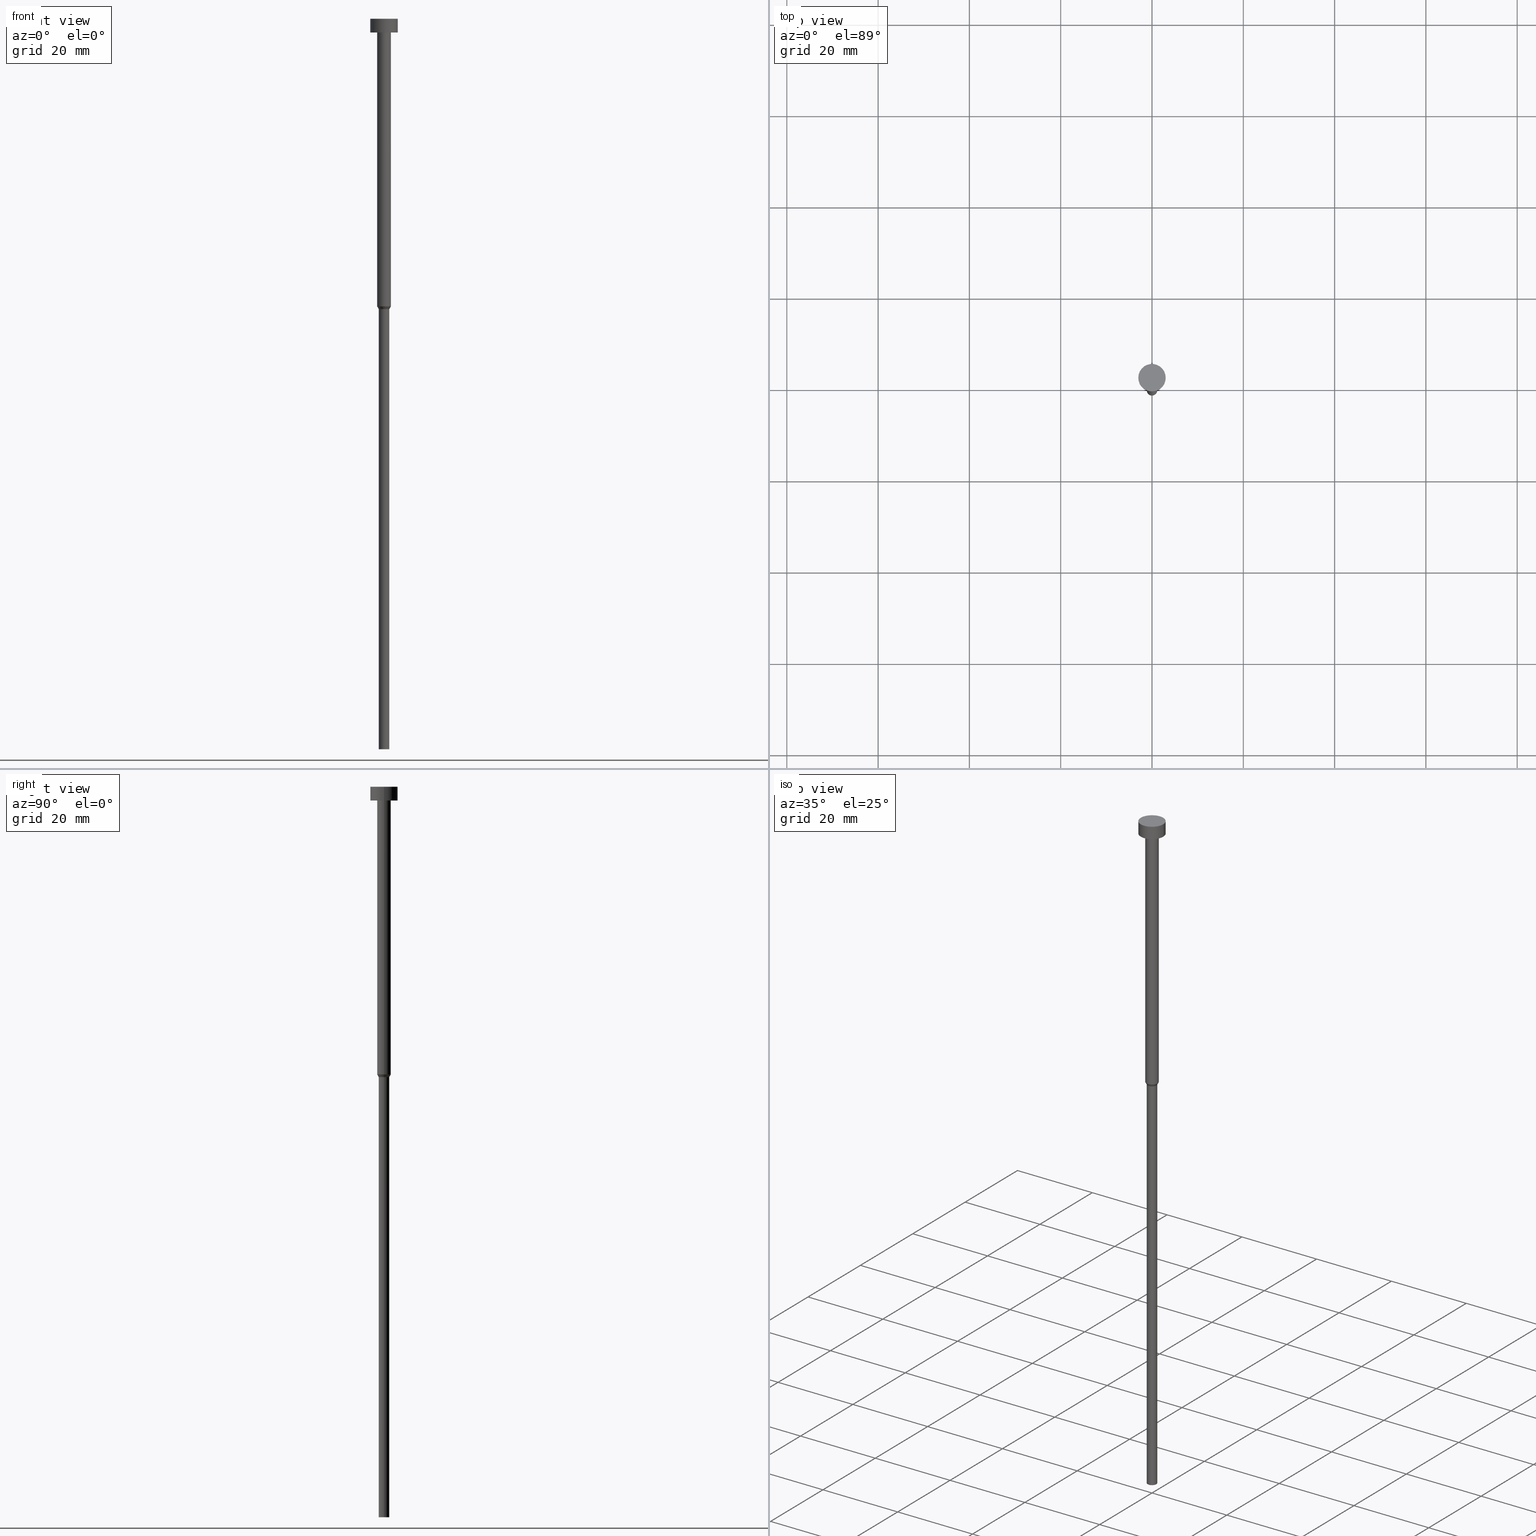
[diagram: canonical four-view strip — front | top / right | iso, engineering-drawing reading convention]
A machine part, canonical four-view strip (front | top / right | iso — engineering-drawing reading convention). The complete STEP part file that produces these views, byte-faithful:
ISO-10303-21;
HEADER;
FILE_DESCRIPTION (( 'STEP AP203' ),
    '1' );
FILE_NAME ('da65.STEP',
    '2023-02-13T10:00:46',
    ( '' ),
    ( '' ),
    'SwSTEP 2.0',
    'SolidWorks 2019',
    '' );
FILE_SCHEMA (( 'CONFIG_CONTROL_DESIGN' ));
ENDSEC;

DATA;
#1 = CARTESIAN_POINT ( 'NONE',  ( 3.000000000000000000, 0.000000000000000000, -3.000000000000000888 ) ) ;
#2 = ORIENTED_EDGE ( 'NONE', *, *, #150, .F. ) ;
#3 = APPROVAL_PERSON_ORGANIZATION ( #348, #340, #324 ) ;
#4 = CARTESIAN_POINT ( 'NONE',  ( 1.500000000000000000, 0.000000000000000000, -63.00000000000000000 ) ) ;
#5 = CYLINDRICAL_SURFACE ( 'NONE', #212, 1.500000000000000000 ) ;
#6 = CC_DESIGN_PERSON_AND_ORGANIZATION_ASSIGNMENT ( #186, #197, ( #154 ) ) ;
#7 = DIRECTION ( 'NONE',  ( -0.000000000000000000, -0.000000000000000000, 1.000000000000000000 ) ) ;
#8 = DIRECTION ( 'NONE',  ( 1.000000000000000000, 0.000000000000000000, 0.000000000000000000 ) ) ;
#9 = AXIS2_PLACEMENT_3D ( 'NONE', #25, #326, #198 ) ;
#10 = AXIS2_PLACEMENT_3D ( 'NONE', #241, #210, #338 ) ;
#11 = ADVANCED_FACE ( 'NONE', ( #229, #141 ), #352, .T. ) ;
#12 = DIRECTION ( 'NONE',  ( -0.000000000000000000, -0.000000000000000000, 1.000000000000000000 ) ) ;
#13 = CARTESIAN_POINT ( 'NONE',  ( 1.149999999999999911, 0.000000000000000000, -63.60621778264910375 ) ) ;
#14 = ORIENTED_EDGE ( 'NONE', *, *, #20, .F. ) ;
#15 = CYLINDRICAL_SURFACE ( 'NONE', #239, 3.000000000000000000 ) ;
#16 = VECTOR ( 'NONE', #250, 1000.000000000000000 ) ;
#17 = ORIENTED_EDGE ( 'NONE', *, *, #224, .T. ) ;
#18 = CC_DESIGN_APPROVAL ( #188, ( #169 ) ) ;
#19 = APPLICATION_PROTOCOL_DEFINITION ( 'international standard', 'config_control_design', 1994, #142 ) ;
#20 = EDGE_CURVE ( 'NONE', #201, #116, #301, .T. ) ;
#21 = FACE_OUTER_BOUND ( 'NONE', #118, .T. ) ;
#22 = DIRECTION ( 'NONE',  ( 0.000000000000000000, 0.000000000000000000, 1.000000000000000000 ) ) ;
#23 = VECTOR ( 'NONE', #336, 1000.000000000000000 ) ;
#24 = EDGE_CURVE ( 'NONE', #319, #193, #273, .T. ) ;
#25 = CARTESIAN_POINT ( 'NONE',  ( 0.000000000000000000, 0.000000000000000000, -160.0000000000000000 ) ) ;
#26 = LINE ( 'NONE', #117, #102 ) ;
#27 = ORIENTED_EDGE ( 'NONE', *, *, #93, .T. ) ;
#28 = AXIS2_PLACEMENT_3D ( 'NONE', #97, #207, #41 ) ;
#29 = CARTESIAN_POINT ( 'NONE',  ( 0.000000000000000000, -3.000000000000000000, -3.000000000000000888 ) ) ;
#30 = EDGE_LOOP ( 'NONE', ( #17, #351 ) ) ;
#31 = DIRECTION ( 'NONE',  ( 1.000000000000000000, 0.000000000000000000, 0.000000000000000000 ) ) ;
#32 = EDGE_CURVE ( 'NONE', #319, #272, #56, .T. ) ;
#33 = ORGANIZATION ( 'NEUR�EN�', 'NEUR�EN�', '' ) ;
#34 = CARTESIAN_POINT ( 'NONE',  ( 0.000000000000000000, 0.000000000000000000, -3.000000000000000888 ) ) ;
#35 = CARTESIAN_POINT ( 'NONE',  ( 0.000000000000000000, 0.000000000000000000, -63.00000000000000000 ) ) ;
#36 = DIRECTION ( 'NONE',  ( -0.000000000000000000, -0.000000000000000000, 1.000000000000000000 ) ) ;
#37 = EDGE_CURVE ( 'NONE', #161, #349, #164, .T. ) ;
#38 = CARTESIAN_POINT ( 'NONE',  ( 0.000000000000000000, 0.000000000000000000, 0.000000000000000000 ) ) ;
#39 = DIRECTION ( 'NONE',  ( 1.000000000000000000, 0.000000000000000000, 0.000000000000000000 ) ) ;
#40 = ORIENTED_EDGE ( 'NONE', *, *, #58, .T. ) ;
#41 = DIRECTION ( 'NONE',  ( 1.000000000000000000, 0.000000000000000000, 0.000000000000000000 ) ) ;
#42 = PERSON_AND_ORGANIZATION_ROLE ( 'classification_officer' ) ;
#43 = CARTESIAN_POINT ( 'NONE',  ( 0.000000000000000000, 0.000000000000000000, -63.00000000000000000 ) ) ;
#44 = AXIS2_PLACEMENT_3D ( 'NONE', #29, #332, #199 ) ;
#45 = VERTEX_POINT ( 'NONE', #1 ) ;
#46 = AXIS2_PLACEMENT_3D ( 'NONE', #103, #286, #288 ) ;
#47 = APPROVAL_STATUS ( 'not_yet_approved' ) ;
#48 = MECHANICAL_CONTEXT ( 'NONE', #142, 'mechanical' ) ;
#49 = APPROVAL_DATE_TIME ( #194, #80 ) ;
#50 = SECURITY_CLASSIFICATION_LEVEL ( 'unclassified' ) ;
#51 = EDGE_LOOP ( 'NONE', ( #183, #303, #136, #263 ) ) ;
#52 = PERSON_AND_ORGANIZATION ( #151, #33 ) ;
#53 = CIRCLE ( 'NONE', #174, 3.000000000000000000 ) ;
#54 = PRODUCT_DEFINITION_SHAPE ( 'NONE', 'NONE',  #163 ) ;
#55 = APPROVAL_PERSON_ORGANIZATION ( #52, #188, #341 ) ;
#56 = LINE ( 'NONE', #302, #60 ) ;
#57 = ORIENTED_EDGE ( 'NONE', *, *, #344, .F. ) ;
#58 = EDGE_CURVE ( 'NONE', #45, #225, #26, .T. ) ;
#59 = DIRECTION ( 'NONE',  ( -0.000000000000000000, -0.000000000000000000, 1.000000000000000000 ) ) ;
#60 = VECTOR ( 'NONE', #59, 1000.000000000000000 ) ;
#61 = CIRCLE ( 'NONE', #96, 3.000000000000000000 ) ;
#62 = VERTEX_POINT ( 'NONE', #140 ) ;
#63 = CARTESIAN_POINT ( 'NONE',  ( 0.000000000000000000, 0.000000000000000000, -3.000000000000000888 ) ) ;
#64 = EDGE_CURVE ( 'NONE', #90, #116, #179, .T. ) ;
#65 = FACE_OUTER_BOUND ( 'NONE', #227, .T. ) ;
#66 = AXIS2_PLACEMENT_3D ( 'NONE', #171, #242, #178 ) ;
#67 = FACE_OUTER_BOUND ( 'NONE', #331, .T. ) ;
#68 = DIRECTION ( 'NONE',  ( -0.000000000000000000, -0.000000000000000000, 1.000000000000000000 ) ) ;
#69 = ADVANCED_FACE ( 'NONE', ( #237 ), #120, .T. ) ;
#70 = DIRECTION ( 'NONE',  ( 1.000000000000000000, 0.000000000000000000, 0.000000000000000000 ) ) ;
#71 = DIRECTION ( 'NONE',  ( -0.000000000000000000, -0.000000000000000000, 1.000000000000000000 ) ) ;
#72 = AXIS2_PLACEMENT_3D ( 'NONE', #187, #22, #268 ) ;
#73 = EDGE_LOOP ( 'NONE', ( #248, #200 ) ) ;
#74 = CC_DESIGN_DATE_AND_TIME_ASSIGNMENT ( #108, #111, ( #163 ) ) ;
#75 = CARTESIAN_POINT ( 'NONE',  ( 0.000000000000000000, 0.000000000000000000, 0.000000000000000000 ) ) ;
#76 = APPROVAL_STATUS ( 'not_yet_approved' ) ;
#77 = ORIENTED_EDGE ( 'NONE', *, *, #64, .T. ) ;
#78 = AXIS2_PLACEMENT_3D ( 'NONE', #121, #254, #70 ) ;
#79 = FACE_OUTER_BOUND ( 'NONE', #128, .T. ) ;
#80 = APPROVAL ( #47, 'NEUR�EN�' ) ;
#81 = EDGE_LOOP ( 'NONE', ( #113, #27, #294, #57 ) ) ;
#82 = PERSON_AND_ORGANIZATION_ROLE ( 'creator' ) ;
#83 = COORDINATED_UNIVERSAL_TIME_OFFSET ( 1, 0, .AHEAD. ) ;
#84 = ORIENTED_EDGE ( 'NONE', *, *, #32, .F. ) ;
#85 = COORDINATED_UNIVERSAL_TIME_OFFSET ( 1, 0, .AHEAD. ) ;
#86 = VECTOR ( 'NONE', #101, 1000.000000000000000 ) ;
#87 = CC_DESIGN_APPROVAL ( #80, ( #154 ) ) ;
#88 = EDGE_LOOP ( 'NONE', ( #270, #166, #137, #2 ) ) ;
#89 = ADVANCED_FACE ( 'NONE', ( #67 ), #5, .T. ) ;
#90 = VERTEX_POINT ( 'NONE', #4 ) ;
#91 = CARTESIAN_POINT ( 'NONE',  ( 0.000000000000000000, 0.000000000000000000, -63.00000000000000000 ) ) ;
#92 = ORIENTED_EDGE ( 'NONE', *, *, #150, .T. ) ;
#93 = EDGE_CURVE ( 'NONE', #116, #90, #221, .T. ) ;
#94 = CARTESIAN_POINT ( 'NONE',  ( -1.149999999999999911, 1.408343819019456028E-16, -160.0000000000000000 ) ) ;
#95 = FACE_OUTER_BOUND ( 'NONE', #247, .T. ) ;
#96 = AXIS2_PLACEMENT_3D ( 'NONE', #182, #129, #39 ) ;
#97 = CARTESIAN_POINT ( 'NONE',  ( 0.000000000000000000, 0.000000000000000000, -160.0000000000000000 ) ) ;
#98 = CC_DESIGN_PERSON_AND_ORGANIZATION_ASSIGNMENT ( #191, #42, ( #169 ) ) ;
#99 = DIRECTION ( 'NONE',  ( 1.000000000000000000, 0.000000000000000000, 0.000000000000000000 ) ) ;
#100 = PLANE ( 'NONE',  #147 ) ;
#101 = DIRECTION ( 'NONE',  ( -0.000000000000000000, -0.000000000000000000, 1.000000000000000000 ) ) ;
#102 = VECTOR ( 'NONE', #232, 1000.000000000000000 ) ;
#103 = CARTESIAN_POINT ( 'NONE',  ( 0.000000000000000000, 0.000000000000000000, 0.000000000000000000 ) ) ;
#104 = APPROVAL_DATE_TIME ( #298, #340 ) ;
#105 = CALENDAR_DATE ( 2023, 13, 2 ) ;
#106 = EDGE_CURVE ( 'NONE', #272, #201, #337, .T. ) ;
#107 = CYLINDRICAL_SURFACE ( 'NONE', #46, 1.149999999999999911 ) ;
#108 = DATE_AND_TIME ( #350, #215 ) ;
#109 = PERSON_AND_ORGANIZATION_ROLE ( 'design_owner' ) ;
#110 = VERTEX_POINT ( 'NONE', #235 ) ;
#111 = DATE_TIME_ROLE ( 'creation_date' ) ;
#112 = ORIENTED_EDGE ( 'NONE', *, *, #37, .T. ) ;
#113 = ORIENTED_EDGE ( 'NONE', *, *, #236, .F. ) ;
#114 = VECTOR ( 'NONE', #12, 1000.000000000000000 ) ;
#115 = CC_DESIGN_SECURITY_CLASSIFICATION ( #169, ( #154 ) ) ;
#116 = VERTEX_POINT ( 'NONE', #282 ) ;
#117 = CARTESIAN_POINT ( 'NONE',  ( 3.000000000000000000, 0.000000000000000000, 0.000000000000000000 ) ) ;
#118 = EDGE_LOOP ( 'NONE', ( #196, #144 ) ) ;
#119 = AXIS2_PLACEMENT_3D ( 'NONE', #185, #71, #192 ) ;
#120 = CYLINDRICAL_SURFACE ( 'NONE', #168, 1.149999999999999911 ) ;
#121 = CARTESIAN_POINT ( 'NONE',  ( 0.000000000000000000, 0.000000000000000000, 0.000000000000000000 ) ) ;
#122 = LINE ( 'NONE', #238, #23 ) ;
#123 = PRODUCT_RELATED_PRODUCT_CATEGORY ( 'detail', '', ( #145 ) ) ;
#124 = LINE ( 'NONE', #261, #114 ) ;
#125 = DIRECTION ( 'NONE',  ( -0.000000000000000000, -0.000000000000000000, 1.000000000000000000 ) ) ;
#126 = FACE_OUTER_BOUND ( 'NONE', #253, .T. ) ;
#127 = EDGE_CURVE ( 'NONE', #161, #45, #53, .T. ) ;
#128 = EDGE_LOOP ( 'NONE', ( #222, #275, #40, #323 ) ) ;
#129 = DIRECTION ( 'NONE',  ( -0.000000000000000000, -0.000000000000000000, 1.000000000000000000 ) ) ;
#130 = CIRCLE ( 'NONE', #260, 1.500000000000000000 ) ;
#131 = DIRECTION ( 'NONE',  ( -0.000000000000000000, -0.000000000000000000, 1.000000000000000000 ) ) ;
#132 = EDGE_CURVE ( 'NONE', #90, #110, #124, .T. ) ;
#133 = FACE_OUTER_BOUND ( 'NONE', #346, .T. ) ;
#134 = ORIENTED_EDGE ( 'NONE', *, *, #93, .F. ) ;
#135 = ADVANCED_BREP_SHAPE_REPRESENTATION ( 'da65', ( #283, #72 ), #234 ) ;
#136 = ORIENTED_EDGE ( 'NONE', *, *, #32, .T. ) ;
#137 = ORIENTED_EDGE ( 'NONE', *, *, #64, .F. ) ;
#138 = APPROVAL_ROLE ( '' ) ;
#139 = EDGE_CURVE ( 'NONE', #349, #225, #228, .T. ) ;
#140 = CARTESIAN_POINT ( 'NONE',  ( -1.500000000000000000, 1.836970198721029934E-16, -3.000000000000000888 ) ) ;
#141 = FACE_OUTER_BOUND ( 'NONE', #73, .T. ) ;
#142 = APPLICATION_CONTEXT ( 'configuration controlled 3d designs of mechanical parts and assemblies' ) ;
#143 = ORIENTED_EDGE ( 'NONE', *, *, #330, .T. ) ;
#144 = ORIENTED_EDGE ( 'NONE', *, *, #240, .F. ) ;
#145 = PRODUCT ( 'da65', 'da65', '', ( #48 ) ) ;
#146 = CARTESIAN_POINT ( 'NONE',  ( 0.000000000000000000, 0.000000000000000000, -1.836970198721029934E-16 ) ) ;
#147 = AXIS2_PLACEMENT_3D ( 'NONE', #313, #211, #220 ) ;
#148 = DIRECTION ( 'NONE',  ( -0.000000000000000000, -0.000000000000000000, 1.000000000000000000 ) ) ;
#149 = DIRECTION ( 'NONE',  ( 0.5000000000000016653, 0.000000000000000000, 0.8660254037844377084 ) ) ;
#150 = EDGE_CURVE ( 'NONE', #272, #90, #333, .T. ) ;
#151 = PERSON ( 'NEUR�EN�', 'NEUR�EN�', 'NEUR�EN�', ('NEUR�EN�'), ('NEUR�EN�'), ('NEUR�EN�') ) ;
#152 = DIRECTION ( 'NONE',  ( 1.000000000000000000, 0.000000000000000000, 0.000000000000000000 ) ) ;
#153 = CARTESIAN_POINT ( 'NONE',  ( 1.500000000000000000, 0.000000000000000000, -63.00000000000000000 ) ) ;
#154 = PRODUCT_DEFINITION_FORMATION_WITH_SPECIFIED_SOURCE ( 'LIBOVOLN�', '', #145, .NOT_KNOWN. ) ;
#155 = CARTESIAN_POINT ( 'NONE',  ( 1.149999999999999911, 0.000000000000000000, -160.0000000000000000 ) ) ;
#156 = CARTESIAN_POINT ( 'NONE',  ( 0.000000000000000000, 0.000000000000000000, -3.000000000000000888 ) ) ;
#157 = ORIENTED_EDGE ( 'NONE', *, *, #277, .T. ) ;
#158 = CARTESIAN_POINT ( 'NONE',  ( 0.000000000000000000, 0.000000000000000000, -63.00000000000000000 ) ) ;
#159 = ADVANCED_FACE ( 'NONE', ( #65 ), #306, .T. ) ;
#160 = AXIS2_PLACEMENT_3D ( 'NONE', #158, #131, #322 ) ;
#161 = VERTEX_POINT ( 'NONE', #256 ) ;
#162 = SHAPE_DEFINITION_REPRESENTATION ( #54, #135 ) ;
#163 = PRODUCT_DEFINITION ( 'NEZN�M�', '', #154, #299 ) ;
#164 = LINE ( 'NONE', #271, #259 ) ;
#165 = ORIENTED_EDGE ( 'NONE', *, *, #304, .T. ) ;
#166 = ORIENTED_EDGE ( 'NONE', *, *, #20, .T. ) ;
#167 = ADVANCED_FACE ( 'NONE', ( #307 ), #177, .T. ) ;
#168 = AXIS2_PLACEMENT_3D ( 'NONE', #176, #36, #99 ) ;
#169 = SECURITY_CLASSIFICATION ( '', '', #50 ) ;
#170 = DIRECTION ( 'NONE',  ( -0.000000000000000000, -0.000000000000000000, 1.000000000000000000 ) ) ;
#171 = CARTESIAN_POINT ( 'NONE',  ( 0.000000000000000000, 0.000000000000000000, -3.000000000000000888 ) ) ;
#172 = DIRECTION ( 'NONE',  ( 1.000000000000000000, 0.000000000000000000, 0.000000000000000000 ) ) ;
#173 = CLOSED_SHELL ( 'NONE', ( #159, #89, #335, #287, #269, #69, #309, #167, #11, #285, #204 ) ) ;
#174 = AXIS2_PLACEMENT_3D ( 'NONE', #63, #125, #8 ) ;
#175 = EDGE_CURVE ( 'NONE', #45, #161, #255, .T. ) ;
#176 = CARTESIAN_POINT ( 'NONE',  ( 0.000000000000000000, 0.000000000000000000, 0.000000000000000000 ) ) ;
#177 = CYLINDRICAL_SURFACE ( 'NONE', #78, 1.500000000000000000 ) ;
#178 = DIRECTION ( 'NONE',  ( 1.000000000000000000, 0.000000000000000000, 0.000000000000000000 ) ) ;
#179 = CIRCLE ( 'NONE', #291, 1.500000000000000000 ) ;
#180 = FACE_OUTER_BOUND ( 'NONE', #88, .T. ) ;
#181 = APPROVAL_PERSON_ORGANIZATION ( #296, #80, #138 ) ;
#182 = CARTESIAN_POINT ( 'NONE',  ( 0.000000000000000000, 0.000000000000000000, -3.673940397442059868E-16 ) ) ;
#183 = ORIENTED_EDGE ( 'NONE', *, *, #277, .F. ) ;
#184 = PERSON_AND_ORGANIZATION ( #151, #33 ) ;
#185 = CARTESIAN_POINT ( 'NONE',  ( 0.000000000000000000, 0.000000000000000000, -63.60621778264910375 ) ) ;
#186 = PERSON_AND_ORGANIZATION ( #151, #33 ) ;
#187 = CARTESIAN_POINT ( 'NONE',  ( 0.000000000000000000, 0.000000000000000000, 0.000000000000000000 ) ) ;
#188 = APPROVAL ( #76, 'NEUR�EN�' ) ;
#189 = VECTOR ( 'NONE', #149, 1000.000000000000000 ) ;
#190 = ORIENTED_EDGE ( 'NONE', *, *, #330, .F. ) ;
#191 = PERSON_AND_ORGANIZATION ( #151, #33 ) ;
#192 = DIRECTION ( 'NONE',  ( 1.000000000000000000, 0.000000000000000000, 0.000000000000000000 ) ) ;
#193 = VERTEX_POINT ( 'NONE', #94 ) ;
#194 = DATE_AND_TIME ( #105, #281 ) ;
#195 = APPLICATION_PROTOCOL_DEFINITION ( 'international standard', 'config_control_design', 1994, #328 ) ;
#196 = ORIENTED_EDGE ( 'NONE', *, *, #24, .F. ) ;
#197 = PERSON_AND_ORGANIZATION_ROLE ( 'design_supplier' ) ;
#198 = DIRECTION ( 'NONE',  ( 1.000000000000000000, 0.000000000000000000, 0.000000000000000000 ) ) ;
#199 = DIRECTION ( 'NONE',  ( -1.000000000000000000, 0.000000000000000000, -0.000000000000000000 ) ) ;
#200 = ORIENTED_EDGE ( 'NONE', *, *, #127, .F. ) ;
#201 = VERTEX_POINT ( 'NONE', #339 ) ;
#202 = CARTESIAN_POINT ( 'NONE',  ( 0.000000000000000000, 0.000000000000000000, -63.60621778264910375 ) ) ;
#203 = DIRECTION ( 'NONE',  ( 0.000000000000000000, -0.000000000000000000, 1.000000000000000000 ) ) ;
#204 = ADVANCED_FACE ( 'NONE', ( #95 ), #278, .T. ) ;
#205 = DIRECTION ( 'NONE',  ( 1.000000000000000000, 0.000000000000000000, 0.000000000000000000 ) ) ;
#206 = CIRCLE ( 'NONE', #28, 1.149999999999999911 ) ;
#207 = DIRECTION ( 'NONE',  ( -0.000000000000000000, -0.000000000000000000, 1.000000000000000000 ) ) ;
#208 = LOCAL_TIME ( 11, 0, 46.00000000000000000, #83 ) ;
#209 = DATE_AND_TIME ( #318, #280 ) ;
#210 = DIRECTION ( 'NONE',  ( -0.000000000000000000, -0.000000000000000000, 1.000000000000000000 ) ) ;
#211 = DIRECTION ( 'NONE',  ( 0.000000000000000000, 0.000000000000000000, -1.000000000000000000 ) ) ;
#212 = AXIS2_PLACEMENT_3D ( 'NONE', #38, #284, #152 ) ;
#213 = DIRECTION ( 'NONE',  ( 1.000000000000000000, 0.000000000000000000, 0.000000000000000000 ) ) ;
#214 = ORIENTED_EDGE ( 'NONE', *, *, #106, .F. ) ;
#215 = LOCAL_TIME ( 11, 0, 46.00000000000000000, #311 ) ;
#216 = COORDINATED_UNIVERSAL_TIME_OFFSET ( 1, 0, .AHEAD. ) ;
#217 = DIRECTION ( 'NONE',  ( -0.000000000000000000, -0.000000000000000000, 1.000000000000000000 ) ) ;
#218 = ORIENTED_EDGE ( 'NONE', *, *, #24, .T. ) ;
#219 = COORDINATED_UNIVERSAL_TIME_OFFSET ( 1, 0, .AHEAD. ) ;
#220 = DIRECTION ( 'NONE',  ( -1.000000000000000000, 0.000000000000000000, -0.000000000000000000 ) ) ;
#221 = CIRCLE ( 'NONE', #327, 1.500000000000000000 ) ;
#222 = ORIENTED_EDGE ( 'NONE', *, *, #37, .F. ) ;
#223 = APPROVAL_STATUS ( 'not_yet_approved' ) ;
#224 = EDGE_CURVE ( 'NONE', #110, #62, #267, .T. ) ;
#225 = VERTEX_POINT ( 'NONE', #257 ) ;
#226 = PERSON_AND_ORGANIZATION_ROLE ( 'creator' ) ;
#227 = EDGE_LOOP ( 'NONE', ( #329, #112, #190, #300 ) ) ;
#228 = CIRCLE ( 'NONE', #10, 3.000000000000000000 ) ;
#229 = FACE_BOUND ( 'NONE', #30, .T. ) ;
#230 = ORIENTED_EDGE ( 'NONE', *, *, #236, .T. ) ;
#231 = CC_DESIGN_PERSON_AND_ORGANIZATION_ASSIGNMENT ( #289, #82, ( #163 ) ) ;
#232 = DIRECTION ( 'NONE',  ( -0.000000000000000000, -0.000000000000000000, 1.000000000000000000 ) ) ;
#233 = ORIENTED_EDGE ( 'NONE', *, *, #139, .T. ) ;
#234 =( GEOMETRIC_REPRESENTATION_CONTEXT ( 3 ) GLOBAL_UNCERTAINTY_ASSIGNED_CONTEXT ( ( #249 ) ) GLOBAL_UNIT_ASSIGNED_CONTEXT ( ( #245, #315, #264 ) ) REPRESENTATION_CONTEXT ( 'NONE', 'WORKASPACE' ) );
#235 = CARTESIAN_POINT ( 'NONE',  ( 1.500000000000000000, 0.000000000000000000, -3.000000000000000888 ) ) ;
#236 = EDGE_CURVE ( 'NONE', #116, #62, #122, .T. ) ;
#237 = FACE_OUTER_BOUND ( 'NONE', #51, .T. ) ;
#238 = CARTESIAN_POINT ( 'NONE',  ( -1.500000000000000000, 1.836970198721029934E-16, 0.000000000000000000 ) ) ;
#239 = AXIS2_PLACEMENT_3D ( 'NONE', #75, #317, #213 ) ;
#240 = EDGE_CURVE ( 'NONE', #193, #319, #206, .T. ) ;
#241 = CARTESIAN_POINT ( 'NONE',  ( 0.000000000000000000, 0.000000000000000000, -3.673940397442059868E-16 ) ) ;
#242 = DIRECTION ( 'NONE',  ( -0.000000000000000000, -0.000000000000000000, 1.000000000000000000 ) ) ;
#243 = DIRECTION ( 'NONE',  ( -0.000000000000000000, -0.000000000000000000, 1.000000000000000000 ) ) ;
#244 = AXIS2_PLACEMENT_3D ( 'NONE', #146, #203, #172 ) ;
#245 =( LENGTH_UNIT ( ) NAMED_UNIT ( * ) SI_UNIT ( .MILLI., .METRE. ) );
#246 = CARTESIAN_POINT ( 'NONE',  ( -1.149999999999999911, 1.408343819019456028E-16, 0.000000000000000000 ) ) ;
#247 = EDGE_LOOP ( 'NONE', ( #143, #233 ) ) ;
#248 = ORIENTED_EDGE ( 'NONE', *, *, #175, .F. ) ;
#249 = UNCERTAINTY_MEASURE_WITH_UNIT (LENGTH_MEASURE( 1.000000000000000082E-05 ), #245, 'distance_accuracy_value', 'NONE');
#250 = DIRECTION ( 'NONE',  ( -0.5000000000000016653, 6.123233995736786990E-17, 0.8660254037844377084 ) ) ;
#251 = CC_DESIGN_PERSON_AND_ORGANIZATION_ASSIGNMENT ( #292, #109, ( #145 ) ) ;
#252 = DIRECTION ( 'NONE',  ( -0.000000000000000000, -0.000000000000000000, 1.000000000000000000 ) ) ;
#253 = EDGE_LOOP ( 'NONE', ( #14, #165, #92, #134 ) ) ;
#254 = DIRECTION ( 'NONE',  ( -0.000000000000000000, -0.000000000000000000, 1.000000000000000000 ) ) ;
#255 = CIRCLE ( 'NONE', #66, 3.000000000000000000 ) ;
#256 = CARTESIAN_POINT ( 'NONE',  ( -3.000000000000000000, 3.673940397442059868E-16, -3.000000000000000888 ) ) ;
#257 = CARTESIAN_POINT ( 'NONE',  ( 3.000000000000000000, 0.000000000000000000, -3.673940397442059868E-16 ) ) ;
#258 = DIRECTION ( 'NONE',  ( -0.000000000000000000, -0.000000000000000000, 1.000000000000000000 ) ) ;
#259 = VECTOR ( 'NONE', #252, 1000.000000000000000 ) ;
#260 = AXIS2_PLACEMENT_3D ( 'NONE', #156, #217, #342 ) ;
#261 = CARTESIAN_POINT ( 'NONE',  ( 1.500000000000000000, 0.000000000000000000, 0.000000000000000000 ) ) ;
#262 = CARTESIAN_POINT ( 'NONE',  ( -3.000000000000000000, 3.673940397442059868E-16, -3.673940397442059868E-16 ) ) ;
#263 = ORIENTED_EDGE ( 'NONE', *, *, #304, .F. ) ;
#264 =( NAMED_UNIT ( * ) SI_UNIT ( $, .STERADIAN. ) SOLID_ANGLE_UNIT ( ) );
#265 = ORIENTED_EDGE ( 'NONE', *, *, #224, .F. ) ;
#266 = APPROVAL_DATE_TIME ( #343, #188 ) ;
#267 = CIRCLE ( 'NONE', #353, 1.500000000000000000 ) ;
#268 = DIRECTION ( 'NONE',  ( 1.000000000000000000, 0.000000000000000000, 0.000000000000000000 ) ) ;
#269 = ADVANCED_FACE ( 'NONE', ( #21 ), #100, .T. ) ;
#270 = ORIENTED_EDGE ( 'NONE', *, *, #106, .T. ) ;
#271 = CARTESIAN_POINT ( 'NONE',  ( -3.000000000000000000, 3.673940397442059868E-16, 0.000000000000000000 ) ) ;
#272 = VERTEX_POINT ( 'NONE', #13 ) ;
#273 = CIRCLE ( 'NONE', #9, 1.149999999999999911 ) ;
#274 = CONICAL_SURFACE ( 'NONE', #321, 1.500000000000000000, 0.5235987755983008141 ) ;
#275 = ORIENTED_EDGE ( 'NONE', *, *, #127, .T. ) ;
#276 = DIRECTION ( 'NONE',  ( 1.000000000000000000, 0.000000000000000000, 0.000000000000000000 ) ) ;
#277 = EDGE_CURVE ( 'NONE', #193, #201, #345, .T. ) ;
#278 = PLANE ( 'NONE',  #244 ) ;
#279 = CIRCLE ( 'NONE', #119, 1.149999999999999911 ) ;
#280 = LOCAL_TIME ( 11, 0, 46.00000000000000000, #219 ) ;
#281 = LOCAL_TIME ( 11, 0, 46.00000000000000000, #216 ) ;
#282 = CARTESIAN_POINT ( 'NONE',  ( -1.500000000000000000, 1.836970198721029934E-16, -63.00000000000000000 ) ) ;
#283 = MANIFOLD_SOLID_BREP ( 'Rotovat1', #173 ) ;
#284 = DIRECTION ( 'NONE',  ( -0.000000000000000000, -0.000000000000000000, 1.000000000000000000 ) ) ;
#285 = ADVANCED_FACE ( 'NONE', ( #79 ), #15, .T. ) ;
#286 = DIRECTION ( 'NONE',  ( -0.000000000000000000, -0.000000000000000000, 1.000000000000000000 ) ) ;
#287 = ADVANCED_FACE ( 'NONE', ( #133 ), #107, .T. ) ;
#288 = DIRECTION ( 'NONE',  ( 1.000000000000000000, 0.000000000000000000, 0.000000000000000000 ) ) ;
#289 = PERSON_AND_ORGANIZATION ( #151, #33 ) ;
#290 = DIRECTION ( 'NONE',  ( 1.000000000000000000, 0.000000000000000000, 0.000000000000000000 ) ) ;
#291 = AXIS2_PLACEMENT_3D ( 'NONE', #91, #170, #276 ) ;
#292 = PERSON_AND_ORGANIZATION ( #151, #33 ) ;
#293 = CC_DESIGN_DATE_AND_TIME_ASSIGNMENT ( #209, #325, ( #169 ) ) ;
#294 = ORIENTED_EDGE ( 'NONE', *, *, #132, .T. ) ;
#295 = CALENDAR_DATE ( 2023, 13, 2 ) ;
#296 = PERSON_AND_ORGANIZATION ( #151, #33 ) ;
#297 = CARTESIAN_POINT ( 'NONE',  ( -1.500000000000000000, 1.836970198721029934E-16, -63.00000000000000000 ) ) ;
#298 = DATE_AND_TIME ( #320, #208 ) ;
#299 = DESIGN_CONTEXT ( 'detailed design', #328, 'design' ) ;
#300 = ORIENTED_EDGE ( 'NONE', *, *, #58, .F. ) ;
#301 = LINE ( 'NONE', #297, #16 ) ;
#302 = CARTESIAN_POINT ( 'NONE',  ( 1.149999999999999911, 0.000000000000000000, 0.000000000000000000 ) ) ;
#303 = ORIENTED_EDGE ( 'NONE', *, *, #240, .T. ) ;
#304 = EDGE_CURVE ( 'NONE', #201, #272, #279, .T. ) ;
#305 = CC_DESIGN_APPROVAL ( #340, ( #163 ) ) ;
#306 = CYLINDRICAL_SURFACE ( 'NONE', #314, 3.000000000000000000 ) ;
#307 = FACE_OUTER_BOUND ( 'NONE', #81, .T. ) ;
#308 = AXIS2_PLACEMENT_3D ( 'NONE', #202, #7, #31 ) ;
#309 = ADVANCED_FACE ( 'NONE', ( #126 ), #347, .T. ) ;
#310 = DIRECTION ( 'NONE',  ( 1.000000000000000000, 0.000000000000000000, 0.000000000000000000 ) ) ;
#311 = COORDINATED_UNIVERSAL_TIME_OFFSET ( 1, 0, .AHEAD. ) ;
#312 = CARTESIAN_POINT ( 'NONE',  ( 0.000000000000000000, 0.000000000000000000, 0.000000000000000000 ) ) ;
#313 = CARTESIAN_POINT ( 'NONE',  ( 0.000000000000000000, 0.000000000000000000, -160.0000000000000000 ) ) ;
#314 = AXIS2_PLACEMENT_3D ( 'NONE', #312, #68, #334 ) ;
#315 =( NAMED_UNIT ( * ) PLANE_ANGLE_UNIT ( ) SI_UNIT ( $, .RADIAN. ) );
#316 = LOCAL_TIME ( 11, 0, 46.00000000000000000, #85 ) ;
#317 = DIRECTION ( 'NONE',  ( -0.000000000000000000, -0.000000000000000000, 1.000000000000000000 ) ) ;
#318 = CALENDAR_DATE ( 2023, 13, 2 ) ;
#319 = VERTEX_POINT ( 'NONE', #155 ) ;
#320 = CALENDAR_DATE ( 2023, 13, 2 ) ;
#321 = AXIS2_PLACEMENT_3D ( 'NONE', #43, #243, #290 ) ;
#322 = DIRECTION ( 'NONE',  ( 1.000000000000000000, 0.000000000000000000, 0.000000000000000000 ) ) ;
#323 = ORIENTED_EDGE ( 'NONE', *, *, #139, .F. ) ;
#324 = APPROVAL_ROLE ( '' ) ;
#325 = DATE_TIME_ROLE ( 'classification_date' ) ;
#326 = DIRECTION ( 'NONE',  ( -0.000000000000000000, -0.000000000000000000, 1.000000000000000000 ) ) ;
#327 = AXIS2_PLACEMENT_3D ( 'NONE', #35, #258, #310 ) ;
#328 = APPLICATION_CONTEXT ( 'configuration controlled 3d designs of mechanical parts and assemblies' ) ;
#329 = ORIENTED_EDGE ( 'NONE', *, *, #175, .T. ) ;
#330 = EDGE_CURVE ( 'NONE', #225, #349, #61, .T. ) ;
#331 = EDGE_LOOP ( 'NONE', ( #77, #230, #265, #354 ) ) ;
#332 = DIRECTION ( 'NONE',  ( 0.000000000000000000, 0.000000000000000000, -1.000000000000000000 ) ) ;
#333 = LINE ( 'NONE', #153, #189 ) ;
#334 = DIRECTION ( 'NONE',  ( 1.000000000000000000, 0.000000000000000000, 0.000000000000000000 ) ) ;
#335 = ADVANCED_FACE ( 'NONE', ( #180 ), #274, .T. ) ;
#336 = DIRECTION ( 'NONE',  ( -0.000000000000000000, -0.000000000000000000, 1.000000000000000000 ) ) ;
#337 = CIRCLE ( 'NONE', #308, 1.149999999999999911 ) ;
#338 = DIRECTION ( 'NONE',  ( 1.000000000000000000, 0.000000000000000000, 0.000000000000000000 ) ) ;
#339 = CARTESIAN_POINT ( 'NONE',  ( -1.149999999999999911, 1.408343819019456028E-16, -63.60621778264910375 ) ) ;
#340 = APPROVAL ( #223, 'NEUR�EN�' ) ;
#341 = APPROVAL_ROLE ( '' ) ;
#342 = DIRECTION ( 'NONE',  ( 1.000000000000000000, 0.000000000000000000, 0.000000000000000000 ) ) ;
#343 = DATE_AND_TIME ( #295, #316 ) ;
#344 = EDGE_CURVE ( 'NONE', #62, #110, #130, .T. ) ;
#345 = LINE ( 'NONE', #246, #86 ) ;
#346 = EDGE_LOOP ( 'NONE', ( #218, #157, #214, #84 ) ) ;
#347 = CONICAL_SURFACE ( 'NONE', #160, 1.500000000000000000, 0.5235987755983008141 ) ;
#348 = PERSON_AND_ORGANIZATION ( #151, #33 ) ;
#349 = VERTEX_POINT ( 'NONE', #262 ) ;
#350 = CALENDAR_DATE ( 2023, 13, 2 ) ;
#351 = ORIENTED_EDGE ( 'NONE', *, *, #344, .T. ) ;
#352 = PLANE ( 'NONE',  #44 ) ;
#353 = AXIS2_PLACEMENT_3D ( 'NONE', #34, #148, #205 ) ;
#354 = ORIENTED_EDGE ( 'NONE', *, *, #132, .F. ) ;
#355 = CC_DESIGN_PERSON_AND_ORGANIZATION_ASSIGNMENT ( #184, #226, ( #154 ) ) ;
ENDSEC;
END-ISO-10303-21;
